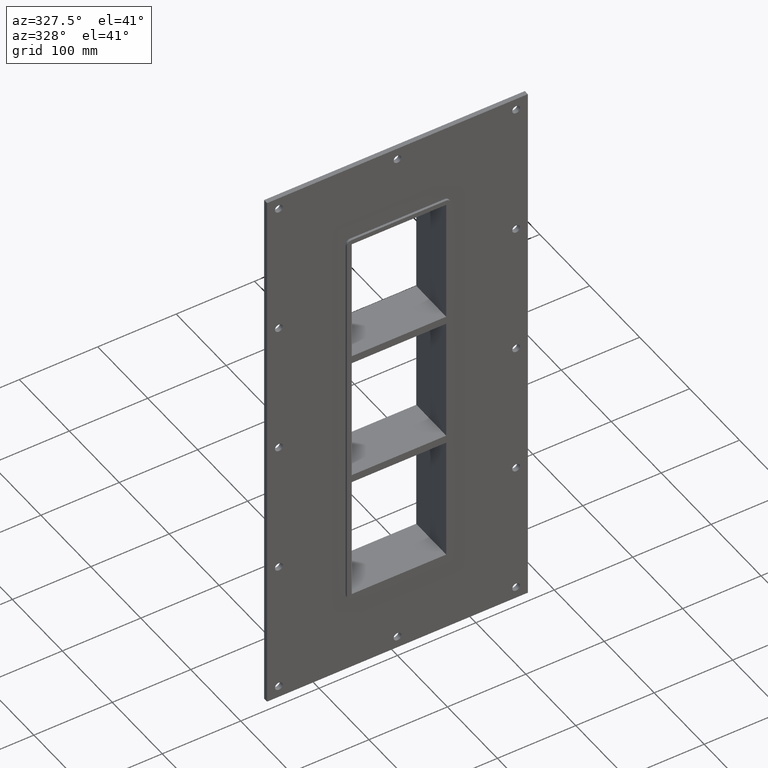
[diagram: clean part render]
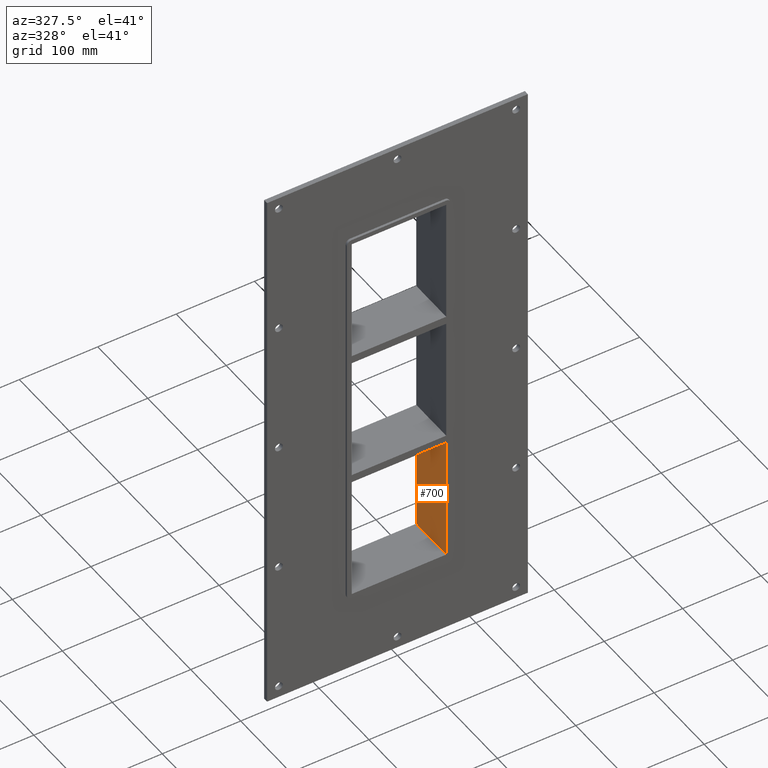
[diagram: same view with one face highlighted and labeled with its STEP entity id]
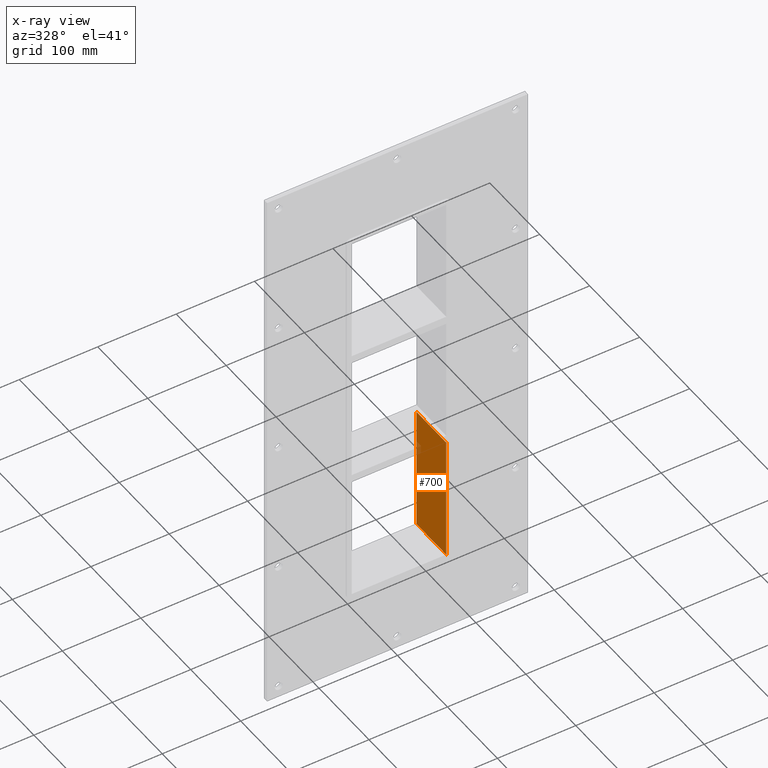
[diagram: x-ray of the same camera — body ghosted, the highlighted face saturated]
A machine part, auxiliary view. The second image highlights one B-rep face of the part: STEP entity #700.
The next image is the same camera in x-ray: the body ghosted, the highlighted face saturated — about 1% of this face is hidden behind the body in this view.
In plain terms, the highlighted planar face has unit normal (1, 0, 0).
Its self-contained STEP definition (entity closure, byte-faithful):
#582=CARTESIAN_POINT('',(60.249999999996362,-3.0,-89.750000000009265));
#583=VERTEX_POINT('',#582);
#600=CARTESIAN_POINT('',(60.249999999996362,57.0,-89.750000000009265));
#601=VERTEX_POINT('',#600);
#608=CARTESIAN_POINT('',(60.249999999999986,-3.0,-89.750000000009251));
#609=DIRECTION('',(0.0,1.0,0.0));
#610=VECTOR('',#609,60.000000000000007);
#611=LINE('',#608,#610);
#612=EDGE_CURVE('',#583,#601,#611,.T.);
#670=CARTESIAN_POINT('',(60.249999999999986,0.0,249.25000000000006));
#671=DIRECTION('',(1.0,0.0,0.0));
#672=DIRECTION('',(0.0,0.0,-1.0));
#673=AXIS2_PLACEMENT_3D('',#670,#671,#672);
#674=PLANE('',#673);
#675=ORIENTED_EDGE('',*,*,#612,.T.);
#676=CARTESIAN_POINT('',(60.249999999999986,57.0,-249.25));
#677=VERTEX_POINT('',#676);
#678=CARTESIAN_POINT('',(60.249999999999986,57.0,-249.24999999999997));
#679=DIRECTION('',(0.0,0.0,1.0));
#680=VECTOR('',#679,159.49999999999068);
#681=LINE('',#678,#680);
#682=EDGE_CURVE('',#677,#601,#681,.T.);
#683=ORIENTED_EDGE('',*,*,#682,.F.);
#684=CARTESIAN_POINT('',(60.249999999999986,-3.0,-249.25));
#685=VERTEX_POINT('',#684);
#686=CARTESIAN_POINT('',(60.249999999999986,56.999999999999993,-249.25));
#687=DIRECTION('',(0.0,-1.0,0.0));
#688=VECTOR('',#687,59.999999999999993);
#689=LINE('',#686,#688);
#690=EDGE_CURVE('',#677,#685,#689,.T.);
#691=ORIENTED_EDGE('',*,*,#690,.T.);
#692=CARTESIAN_POINT('',(60.249999999999986,-3.0,-89.750000000009294));
#693=DIRECTION('',(0.0,0.0,-1.0));
#694=VECTOR('',#693,159.49999999999068);
#695=LINE('',#692,#694);
#696=EDGE_CURVE('',#583,#685,#695,.T.);
#697=ORIENTED_EDGE('',*,*,#696,.F.);
#698=EDGE_LOOP('',(#675,#683,#691,#697));
#699=FACE_OUTER_BOUND('',#698,.T.);
#700=ADVANCED_FACE('',(#699),#674,.F.);